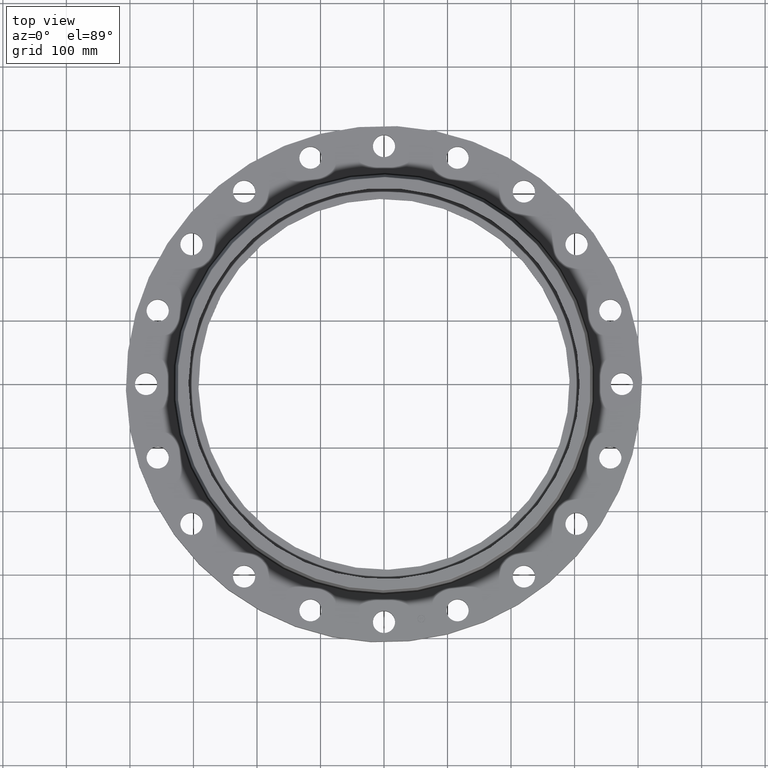
[diagram: clean part render]
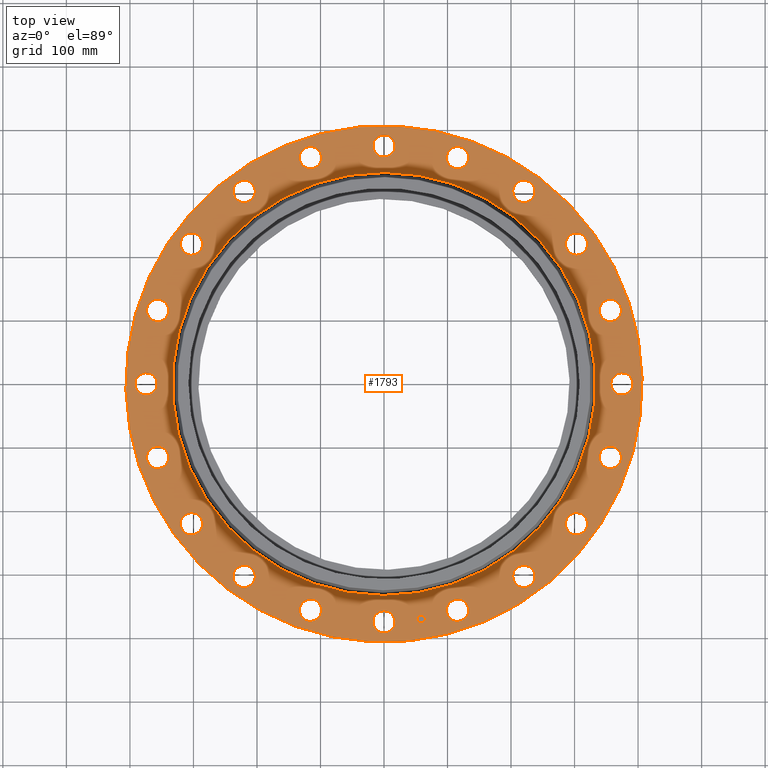
[diagram: same view with one face highlighted and labeled with its STEP entity id]
A machine part, top view. The second image highlights one B-rep face of the part: STEP entity #1793.
In plain terms, the highlighted planar face has unit normal (0, 0, -1).
Its self-contained STEP definition (entity closure, byte-faithful):
#593=AXIS2_PLACEMENT_3D('Circle Axis2P3D',#591,#592,$) ;
#612=AXIS2_PLACEMENT_3D('Circle Axis2P3D',#610,#611,$) ;
#629=AXIS2_PLACEMENT_3D('Circle Axis2P3D',#627,#628,$) ;
#664=AXIS2_PLACEMENT_3D('Circle Axis2P3D',#662,#663,$) ;
#814=AXIS2_PLACEMENT_3D('Circle Axis2P3D',#812,#813,$) ;
#826=AXIS2_PLACEMENT_3D('Circle Axis2P3D',#824,#825,$) ;
#857=AXIS2_PLACEMENT_3D('Circle Axis2P3D',#855,#856,$) ;
#869=AXIS2_PLACEMENT_3D('Circle Axis2P3D',#867,#868,$) ;
#900=AXIS2_PLACEMENT_3D('Circle Axis2P3D',#898,#899,$) ;
#912=AXIS2_PLACEMENT_3D('Circle Axis2P3D',#910,#911,$) ;
#943=AXIS2_PLACEMENT_3D('Circle Axis2P3D',#941,#942,$) ;
#955=AXIS2_PLACEMENT_3D('Circle Axis2P3D',#953,#954,$) ;
#986=AXIS2_PLACEMENT_3D('Circle Axis2P3D',#984,#985,$) ;
#998=AXIS2_PLACEMENT_3D('Circle Axis2P3D',#996,#997,$) ;
#1029=AXIS2_PLACEMENT_3D('Circle Axis2P3D',#1027,#1028,$) ;
#1041=AXIS2_PLACEMENT_3D('Circle Axis2P3D',#1039,#1040,$) ;
#1072=AXIS2_PLACEMENT_3D('Circle Axis2P3D',#1070,#1071,$) ;
#1084=AXIS2_PLACEMENT_3D('Circle Axis2P3D',#1082,#1083,$) ;
#1115=AXIS2_PLACEMENT_3D('Circle Axis2P3D',#1113,#1114,$) ;
#1127=AXIS2_PLACEMENT_3D('Circle Axis2P3D',#1125,#1126,$) ;
#1158=AXIS2_PLACEMENT_3D('Circle Axis2P3D',#1156,#1157,$) ;
#1170=AXIS2_PLACEMENT_3D('Circle Axis2P3D',#1168,#1169,$) ;
#1201=AXIS2_PLACEMENT_3D('Circle Axis2P3D',#1199,#1200,$) ;
#1213=AXIS2_PLACEMENT_3D('Circle Axis2P3D',#1211,#1212,$) ;
#1244=AXIS2_PLACEMENT_3D('Circle Axis2P3D',#1242,#1243,$) ;
#1256=AXIS2_PLACEMENT_3D('Circle Axis2P3D',#1254,#1255,$) ;
#1287=AXIS2_PLACEMENT_3D('Circle Axis2P3D',#1285,#1286,$) ;
#1299=AXIS2_PLACEMENT_3D('Circle Axis2P3D',#1297,#1298,$) ;
#1330=AXIS2_PLACEMENT_3D('Circle Axis2P3D',#1328,#1329,$) ;
#1342=AXIS2_PLACEMENT_3D('Circle Axis2P3D',#1340,#1341,$) ;
#1373=AXIS2_PLACEMENT_3D('Circle Axis2P3D',#1371,#1372,$) ;
#1385=AXIS2_PLACEMENT_3D('Circle Axis2P3D',#1383,#1384,$) ;
#1416=AXIS2_PLACEMENT_3D('Circle Axis2P3D',#1414,#1415,$) ;
#1428=AXIS2_PLACEMENT_3D('Circle Axis2P3D',#1426,#1427,$) ;
#1459=AXIS2_PLACEMENT_3D('Circle Axis2P3D',#1457,#1458,$) ;
#1471=AXIS2_PLACEMENT_3D('Circle Axis2P3D',#1469,#1470,$) ;
#1502=AXIS2_PLACEMENT_3D('Circle Axis2P3D',#1500,#1501,$) ;
#1514=AXIS2_PLACEMENT_3D('Circle Axis2P3D',#1512,#1513,$) ;
#1545=AXIS2_PLACEMENT_3D('Circle Axis2P3D',#1543,#1544,$) ;
#1557=AXIS2_PLACEMENT_3D('Circle Axis2P3D',#1555,#1556,$) ;
#1588=AXIS2_PLACEMENT_3D('Circle Axis2P3D',#1586,#1587,$) ;
#1600=AXIS2_PLACEMENT_3D('Circle Axis2P3D',#1598,#1599,$) ;
#1631=AXIS2_PLACEMENT_3D('Circle Axis2P3D',#1629,#1630,$) ;
#1643=AXIS2_PLACEMENT_3D('Circle Axis2P3D',#1641,#1642,$) ;
#1685=AXIS2_PLACEMENT_3D('Plane Axis2P3D',#1682,#1683,#1684) ;
#1777=AXIS2_PLACEMENT_3D('Circle Axis2P3D',#1775,#1776,$) ;
#1786=AXIS2_PLACEMENT_3D('Circle Axis2P3D',#1784,#1785,$) ;
#588=CARTESIAN_POINT('Vertex',(-7.6708086177,-14.0413209903,1.81000000001)) ;
#591=CARTESIAN_POINT('Axis2P3D Location',(0.,0.,1.81000000001)) ;
#595=CARTESIAN_POINT('Vertex',(7.6708086177,14.0413209903,1.81000000001)) ;
#610=CARTESIAN_POINT('Axis2P3D Location',(0.,0.,1.81000000001)) ;
#627=CARTESIAN_POINT('Axis2P3D Location',(0.,0.,1.81000000001)) ;
#631=CARTESIAN_POINT('Vertex',(6.28543468175,11.5054110106,1.81000000001)) ;
#633=CARTESIAN_POINT('Vertex',(-6.28543468175,-11.5054110106,1.81000000001)) ;
#662=CARTESIAN_POINT('Axis2P3D Location',(0.,0.,1.81000000001)) ;
#802=CARTESIAN_POINT('Vertex',(14.70620268,4.43050739573,1.81000000001)) ;
#809=CARTESIAN_POINT('Vertex',(13.3499645508,4.68549393836,1.81000000001)) ;
#812=CARTESIAN_POINT('Axis2P3D Location',(14.0280836154,4.55800066705,1.81000000001)) ;
#824=CARTESIAN_POINT('Axis2P3D Location',(14.0280836154,4.55800066705,1.81000000001)) ;
#845=CARTESIAN_POINT('Vertex',(12.6173278098,8.75812948005,1.81000000001)) ;
#852=CARTESIAN_POINT('Vertex',(11.2486735244,8.58153546265,1.81000000001)) ;
#855=CARTESIAN_POINT('Axis2P3D Location',(11.9330006671,8.66983247135,1.81000000001)) ;
#867=CARTESIAN_POINT('Axis2P3D Location',(11.9330006671,8.66983247135,1.81000000001)) ;
#888=CARTESIAN_POINT('Vertex',(9.29338098346,12.2284448294,1.81000000001)) ;
#895=CARTESIAN_POINT('Vertex',(8.04628395923,11.6375565048,1.81000000001)) ;
#898=CARTESIAN_POINT('Axis2P3D Location',(8.66983247135,11.9330006671,1.81000000001)) ;
#910=CARTESIAN_POINT('Axis2P3D Location',(8.66983247135,11.9330006671,1.81000000001)) ;
#931=CARTESIAN_POINT('Vertex',(5.05973327568,14.5017547982,1.81000000001)) ;
#938=CARTESIAN_POINT('Vertex',(4.05626805842,13.5544124326,1.81000000001)) ;
#941=CARTESIAN_POINT('Axis2P3D Location',(4.55800066705,14.0280836154,1.81000000001)) ;
#953=CARTESIAN_POINT('Axis2P3D Location',(4.55800066705,14.0280836154,1.81000000001)) ;
#974=CARTESIAN_POINT('Vertex',(0.330803621638,15.3555319678,1.81000000001)) ;
#981=CARTESIAN_POINT('Vertex',(-0.330803621638,14.1444680324,1.81000000001)) ;
#984=CARTESIAN_POINT('Axis2P3D Location',(-1.58101627338E-014,14.7500000001,1.81000000001)) ;
#996=CARTESIAN_POINT('Axis2P3D Location',(-1.58101627338E-014,14.7500000001,1.81000000001)) ;
#1017=CARTESIAN_POINT('Vertex',(-4.43050739573,14.70620268,1.81000000001)) ;
#1024=CARTESIAN_POINT('Vertex',(-4.68549393836,13.3499645508,1.81000000001)) ;
#1027=CARTESIAN_POINT('Axis2P3D Location',(-4.55800066705,14.0280836154,1.81000000001)) ;
#1039=CARTESIAN_POINT('Axis2P3D Location',(-4.55800066705,14.0280836154,1.81000000001)) ;
#1060=CARTESIAN_POINT('Vertex',(-8.75812948005,12.6173278098,1.81000000001)) ;
#1067=CARTESIAN_POINT('Vertex',(-8.58153546265,11.2486735244,1.81000000001)) ;
#1070=CARTESIAN_POINT('Axis2P3D Location',(-8.66983247135,11.9330006671,1.81000000001)) ;
#1082=CARTESIAN_POINT('Axis2P3D Location',(-8.66983247135,11.9330006671,1.81000000001)) ;
#1103=CARTESIAN_POINT('Vertex',(-12.2284448294,9.29338098346,1.81000000001)) ;
#1110=CARTESIAN_POINT('Vertex',(-11.6375565048,8.04628395923,1.81000000001)) ;
#1113=CARTESIAN_POINT('Axis2P3D Location',(-11.9330006671,8.66983247135,1.81000000001)) ;
#1125=CARTESIAN_POINT('Axis2P3D Location',(-11.9330006671,8.66983247135,1.81000000001)) ;
#1146=CARTESIAN_POINT('Vertex',(-14.5017547982,5.05973327568,1.81000000001)) ;
#1153=CARTESIAN_POINT('Vertex',(-13.5544124326,4.05626805842,1.81000000001)) ;
#1156=CARTESIAN_POINT('Axis2P3D Location',(-14.0280836154,4.55800066705,1.81000000001)) ;
#1168=CARTESIAN_POINT('Axis2P3D Location',(-14.0280836154,4.55800066705,1.81000000001)) ;
#1189=CARTESIAN_POINT('Vertex',(-15.3555319678,0.330803621638,1.81000000001)) ;
#1196=CARTESIAN_POINT('Vertex',(-14.1444680324,-0.330803621638,1.81000000001)) ;
#1199=CARTESIAN_POINT('Axis2P3D Location',(-14.7500000001,-8.35666987406E-015,1.81000000001)) ;
#1211=CARTESIAN_POINT('Axis2P3D Location',(-14.7500000001,-8.35666987406E-015,1.81000000001)) ;
#1232=CARTESIAN_POINT('Vertex',(-14.70620268,-4.43050739573,1.81000000001)) ;
#1239=CARTESIAN_POINT('Vertex',(-13.3499645508,-4.68549393836,1.81000000001)) ;
#1242=CARTESIAN_POINT('Axis2P3D Location',(-14.0280836154,-4.55800066705,1.81000000001)) ;
#1254=CARTESIAN_POINT('Axis2P3D Location',(-14.0280836154,-4.55800066705,1.81000000001)) ;
#1275=CARTESIAN_POINT('Vertex',(-12.6173278098,-8.75812948005,1.81000000001)) ;
#1282=CARTESIAN_POINT('Vertex',(-11.2486735244,-8.58153546265,1.81000000001)) ;
#1285=CARTESIAN_POINT('Axis2P3D Location',(-11.9330006671,-8.66983247135,1.81000000001)) ;
#1297=CARTESIAN_POINT('Axis2P3D Location',(-11.9330006671,-8.66983247135,1.81000000001)) ;
#1318=CARTESIAN_POINT('Vertex',(-9.29338098346,-12.2284448294,1.81000000001)) ;
#1325=CARTESIAN_POINT('Vertex',(-8.04628395923,-11.6375565048,1.81000000001)) ;
#1328=CARTESIAN_POINT('Axis2P3D Location',(-8.66983247135,-11.9330006671,1.81000000001)) ;
#1340=CARTESIAN_POINT('Axis2P3D Location',(-8.66983247135,-11.9330006671,1.81000000001)) ;
#1361=CARTESIAN_POINT('Vertex',(-5.05973327568,-14.5017547982,1.81000000001)) ;
#1368=CARTESIAN_POINT('Vertex',(-4.05626805842,-13.5544124326,1.81000000001)) ;
#1371=CARTESIAN_POINT('Axis2P3D Location',(-4.55800066705,-14.0280836154,1.81000000001)) ;
#1383=CARTESIAN_POINT('Axis2P3D Location',(-4.55800066705,-14.0280836154,1.81000000001)) ;
#1404=CARTESIAN_POINT('Vertex',(-0.330803621638,-15.3555319678,1.81000000001)) ;
#1411=CARTESIAN_POINT('Vertex',(0.330803621638,-14.1444680324,1.81000000001)) ;
#1414=CARTESIAN_POINT('Axis2P3D Location',(4.17833493703E-015,-14.7500000001,1.81000000001)) ;
#1426=CARTESIAN_POINT('Axis2P3D Location',(4.17833493703E-015,-14.7500000001,1.81000000001)) ;
#1447=CARTESIAN_POINT('Vertex',(4.43050739573,-14.70620268,1.81000000001)) ;
#1454=CARTESIAN_POINT('Vertex',(4.68549393836,-13.3499645508,1.81000000001)) ;
#1457=CARTESIAN_POINT('Axis2P3D Location',(4.55800066705,-14.0280836154,1.81000000001)) ;
#1469=CARTESIAN_POINT('Axis2P3D Location',(4.55800066705,-14.0280836154,1.81000000001)) ;
#1490=CARTESIAN_POINT('Vertex',(8.75812948005,-12.6173278098,1.81000000001)) ;
#1497=CARTESIAN_POINT('Vertex',(8.58153546265,-11.2486735244,1.81000000001)) ;
#1500=CARTESIAN_POINT('Axis2P3D Location',(8.66983247135,-11.9330006671,1.81000000001)) ;
#1512=CARTESIAN_POINT('Axis2P3D Location',(8.66983247135,-11.9330006671,1.81000000001)) ;
#1533=CARTESIAN_POINT('Vertex',(12.2284448294,-9.29338098346,1.81000000001)) ;
#1540=CARTESIAN_POINT('Vertex',(11.6375565048,-8.04628395923,1.81000000001)) ;
#1543=CARTESIAN_POINT('Axis2P3D Location',(11.9330006671,-8.66983247135,1.81000000001)) ;
#1555=CARTESIAN_POINT('Axis2P3D Location',(11.9330006671,-8.66983247135,1.81000000001)) ;
#1576=CARTESIAN_POINT('Vertex',(14.5017547982,-5.05973327568,1.81000000001)) ;
#1583=CARTESIAN_POINT('Vertex',(13.5544124326,-4.05626805842,1.81000000001)) ;
#1586=CARTESIAN_POINT('Axis2P3D Location',(14.0280836154,-4.55800066705,1.81000000001)) ;
#1598=CARTESIAN_POINT('Axis2P3D Location',(14.0280836154,-4.55800066705,1.81000000001)) ;
#1619=CARTESIAN_POINT('Vertex',(14.1444680324,0.330803621638,1.81000000001)) ;
#1626=CARTESIAN_POINT('Vertex',(15.3555319678,-0.330803621638,1.81000000001)) ;
#1629=CARTESIAN_POINT('Axis2P3D Location',(14.7500000001,0.,1.81000000001)) ;
#1641=CARTESIAN_POINT('Axis2P3D Location',(14.7500000001,0.,1.81000000001)) ;
#1682=CARTESIAN_POINT('Axis2P3D Location',(0.,16.0000000001,1.81000000001)) ;
#1775=CARTESIAN_POINT('Axis2P3D Location',(2.30740835935,-14.5684030238,1.81000000001)) ;
#1779=CARTESIAN_POINT('Vertex',(2.55186122365,-14.5296854937,1.81000000001)) ;
#1781=CARTESIAN_POINT('Vertex',(2.06295549505,-14.6071205539,1.81000000001)) ;
#1784=CARTESIAN_POINT('Axis2P3D Location',(2.30740835935,-14.5684030238,1.81000000001)) ;
#592=DIRECTION('Axis2P3D Direction',(0.,0.,-0.0393700787402)) ;
#611=DIRECTION('Axis2P3D Direction',(0.,0.,-0.0393700787402)) ;
#628=DIRECTION('Axis2P3D Direction',(0.,0.,-0.0393700787402)) ;
#663=DIRECTION('Axis2P3D Direction',(0.,0.,-0.0393700787402)) ;
#813=DIRECTION('Axis2P3D Direction',(0.,0.,-0.0393700787402)) ;
#825=DIRECTION('Axis2P3D Direction',(0.,0.,-0.0393700787402)) ;
#856=DIRECTION('Axis2P3D Direction',(0.,0.,-0.0393700787402)) ;
#868=DIRECTION('Axis2P3D Direction',(0.,0.,-0.0393700787402)) ;
#899=DIRECTION('Axis2P3D Direction',(0.,0.,-0.0393700787402)) ;
#911=DIRECTION('Axis2P3D Direction',(0.,0.,-0.0393700787402)) ;
#942=DIRECTION('Axis2P3D Direction',(0.,0.,-0.0393700787402)) ;
#954=DIRECTION('Axis2P3D Direction',(0.,0.,-0.0393700787402)) ;
#985=DIRECTION('Axis2P3D Direction',(0.,0.,-0.0393700787402)) ;
#997=DIRECTION('Axis2P3D Direction',(0.,0.,-0.0393700787402)) ;
#1028=DIRECTION('Axis2P3D Direction',(0.,0.,-0.0393700787402)) ;
#1040=DIRECTION('Axis2P3D Direction',(0.,0.,-0.0393700787402)) ;
#1071=DIRECTION('Axis2P3D Direction',(0.,0.,-0.0393700787402)) ;
#1083=DIRECTION('Axis2P3D Direction',(0.,0.,-0.0393700787402)) ;
#1114=DIRECTION('Axis2P3D Direction',(0.,0.,-0.0393700787402)) ;
#1126=DIRECTION('Axis2P3D Direction',(0.,0.,-0.0393700787402)) ;
#1157=DIRECTION('Axis2P3D Direction',(0.,0.,-0.0393700787402)) ;
#1169=DIRECTION('Axis2P3D Direction',(0.,0.,-0.0393700787402)) ;
#1200=DIRECTION('Axis2P3D Direction',(-0.,0.,-0.0393700787402)) ;
#1212=DIRECTION('Axis2P3D Direction',(-0.,0.,-0.0393700787402)) ;
#1243=DIRECTION('Axis2P3D Direction',(-0.,0.,-0.0393700787402)) ;
#1255=DIRECTION('Axis2P3D Direction',(-0.,0.,-0.0393700787402)) ;
#1286=DIRECTION('Axis2P3D Direction',(-0.,0.,-0.0393700787402)) ;
#1298=DIRECTION('Axis2P3D Direction',(-0.,0.,-0.0393700787402)) ;
#1329=DIRECTION('Axis2P3D Direction',(-0.,0.,-0.0393700787402)) ;
#1341=DIRECTION('Axis2P3D Direction',(-0.,0.,-0.0393700787402)) ;
#1372=DIRECTION('Axis2P3D Direction',(-0.,0.,-0.0393700787402)) ;
#1384=DIRECTION('Axis2P3D Direction',(-0.,0.,-0.0393700787402)) ;
#1415=DIRECTION('Axis2P3D Direction',(0.,-0.,-0.0393700787402)) ;
#1427=DIRECTION('Axis2P3D Direction',(0.,-0.,-0.0393700787402)) ;
#1458=DIRECTION('Axis2P3D Direction',(0.,-0.,-0.0393700787402)) ;
#1470=DIRECTION('Axis2P3D Direction',(0.,-0.,-0.0393700787402)) ;
#1501=DIRECTION('Axis2P3D Direction',(0.,-0.,-0.0393700787402)) ;
#1513=DIRECTION('Axis2P3D Direction',(0.,-0.,-0.0393700787402)) ;
#1544=DIRECTION('Axis2P3D Direction',(0.,-0.,-0.0393700787402)) ;
#1556=DIRECTION('Axis2P3D Direction',(0.,-0.,-0.0393700787402)) ;
#1587=DIRECTION('Axis2P3D Direction',(0.,-0.,-0.0393700787402)) ;
#1599=DIRECTION('Axis2P3D Direction',(0.,-0.,-0.0393700787402)) ;
#1630=DIRECTION('Axis2P3D Direction',(0.,-0.,-0.0393700787402)) ;
#1642=DIRECTION('Axis2P3D Direction',(0.,-0.,-0.0393700787402)) ;
#1683=DIRECTION('Axis2P3D Direction',(0.,0.,-0.0393700787402)) ;
#1684=DIRECTION('Axis2P3D XDirection',(0.0393700787402,0.,0.)) ;
#1776=DIRECTION('Axis2P3D Direction',(0.,0.,-0.0393700787402)) ;
#1785=DIRECTION('Axis2P3D Direction',(0.,0.,-0.0393700787402)) ;
#1688=ORIENTED_EDGE('',*,*,#614,.F.) ;
#1689=ORIENTED_EDGE('',*,*,#597,.F.) ;
#1692=ORIENTED_EDGE('',*,*,#1633,.T.) ;
#1693=ORIENTED_EDGE('',*,*,#1645,.T.) ;
#1696=ORIENTED_EDGE('',*,*,#666,.T.) ;
#1697=ORIENTED_EDGE('',*,*,#635,.T.) ;
#1700=ORIENTED_EDGE('',*,*,#1590,.T.) ;
#1701=ORIENTED_EDGE('',*,*,#1602,.T.) ;
#1704=ORIENTED_EDGE('',*,*,#1547,.T.) ;
#1705=ORIENTED_EDGE('',*,*,#1559,.T.) ;
#1708=ORIENTED_EDGE('',*,*,#1504,.T.) ;
#1709=ORIENTED_EDGE('',*,*,#1516,.T.) ;
#1712=ORIENTED_EDGE('',*,*,#1461,.T.) ;
#1713=ORIENTED_EDGE('',*,*,#1473,.T.) ;
#1716=ORIENTED_EDGE('',*,*,#1418,.T.) ;
#1717=ORIENTED_EDGE('',*,*,#1430,.T.) ;
#1720=ORIENTED_EDGE('',*,*,#1375,.T.) ;
#1721=ORIENTED_EDGE('',*,*,#1387,.T.) ;
#1724=ORIENTED_EDGE('',*,*,#1332,.T.) ;
#1725=ORIENTED_EDGE('',*,*,#1344,.T.) ;
#1728=ORIENTED_EDGE('',*,*,#1289,.T.) ;
#1729=ORIENTED_EDGE('',*,*,#1301,.T.) ;
#1732=ORIENTED_EDGE('',*,*,#1246,.T.) ;
#1733=ORIENTED_EDGE('',*,*,#1258,.T.) ;
#1736=ORIENTED_EDGE('',*,*,#1203,.T.) ;
#1737=ORIENTED_EDGE('',*,*,#1215,.T.) ;
#1740=ORIENTED_EDGE('',*,*,#1160,.T.) ;
#1741=ORIENTED_EDGE('',*,*,#1172,.T.) ;
#1744=ORIENTED_EDGE('',*,*,#1117,.T.) ;
#1745=ORIENTED_EDGE('',*,*,#1129,.T.) ;
#1748=ORIENTED_EDGE('',*,*,#1074,.T.) ;
#1749=ORIENTED_EDGE('',*,*,#1086,.T.) ;
#1752=ORIENTED_EDGE('',*,*,#1031,.T.) ;
#1753=ORIENTED_EDGE('',*,*,#1043,.T.) ;
#1756=ORIENTED_EDGE('',*,*,#988,.T.) ;
#1757=ORIENTED_EDGE('',*,*,#1000,.T.) ;
#1760=ORIENTED_EDGE('',*,*,#945,.T.) ;
#1761=ORIENTED_EDGE('',*,*,#957,.T.) ;
#1764=ORIENTED_EDGE('',*,*,#902,.T.) ;
#1765=ORIENTED_EDGE('',*,*,#914,.T.) ;
#1768=ORIENTED_EDGE('',*,*,#859,.T.) ;
#1769=ORIENTED_EDGE('',*,*,#871,.T.) ;
#1772=ORIENTED_EDGE('',*,*,#816,.T.) ;
#1773=ORIENTED_EDGE('',*,*,#828,.T.) ;
#1790=ORIENTED_EDGE('',*,*,#1783,.T.) ;
#1791=ORIENTED_EDGE('',*,*,#1788,.T.) ;
#1694=FACE_BOUND('',#1691,.T.) ;
#1698=FACE_BOUND('',#1695,.T.) ;
#1702=FACE_BOUND('',#1699,.T.) ;
#1706=FACE_BOUND('',#1703,.T.) ;
#1710=FACE_BOUND('',#1707,.T.) ;
#1714=FACE_BOUND('',#1711,.T.) ;
#1718=FACE_BOUND('',#1715,.T.) ;
#1722=FACE_BOUND('',#1719,.T.) ;
#1726=FACE_BOUND('',#1723,.T.) ;
#1730=FACE_BOUND('',#1727,.T.) ;
#1734=FACE_BOUND('',#1731,.T.) ;
#1738=FACE_BOUND('',#1735,.T.) ;
#1742=FACE_BOUND('',#1739,.T.) ;
#1746=FACE_BOUND('',#1743,.T.) ;
#1750=FACE_BOUND('',#1747,.T.) ;
#1754=FACE_BOUND('',#1751,.T.) ;
#1758=FACE_BOUND('',#1755,.T.) ;
#1762=FACE_BOUND('',#1759,.T.) ;
#1766=FACE_BOUND('',#1763,.T.) ;
#1770=FACE_BOUND('',#1767,.T.) ;
#1774=FACE_BOUND('',#1771,.T.) ;
#1792=FACE_BOUND('',#1789,.T.) ;
#1793=ADVANCED_FACE('PartBody',(#1690,#1694,#1698,#1702,#1706,#1710,#1714,#1718,#1722,#1726,#1730,#1734,#1738,#1742,#1746,#1750,#1754,#1758,#1762,#1766,#1770,#1774,#1792),#1686,.F.) ;
#594=CIRCLE('generated circle',#593,16.0000000001) ;
#613=CIRCLE('generated circle',#612,16.0000000001) ;
#630=CIRCLE('generated circle',#629,13.1103459779) ;
#665=CIRCLE('generated circle',#664,13.1103459779) ;
#815=CIRCLE('generated circle',#814,0.690000000003) ;
#827=CIRCLE('generated circle',#826,0.690000000003) ;
#858=CIRCLE('generated circle',#857,0.690000000003) ;
#870=CIRCLE('generated circle',#869,0.690000000003) ;
#901=CIRCLE('generated circle',#900,0.690000000003) ;
#913=CIRCLE('generated circle',#912,0.690000000003) ;
#944=CIRCLE('generated circle',#943,0.690000000003) ;
#956=CIRCLE('generated circle',#955,0.690000000003) ;
#987=CIRCLE('generated circle',#986,0.690000000003) ;
#999=CIRCLE('generated circle',#998,0.690000000003) ;
#1030=CIRCLE('generated circle',#1029,0.690000000003) ;
#1042=CIRCLE('generated circle',#1041,0.690000000003) ;
#1073=CIRCLE('generated circle',#1072,0.690000000003) ;
#1085=CIRCLE('generated circle',#1084,0.690000000003) ;
#1116=CIRCLE('generated circle',#1115,0.690000000003) ;
#1128=CIRCLE('generated circle',#1127,0.690000000003) ;
#1159=CIRCLE('generated circle',#1158,0.690000000003) ;
#1171=CIRCLE('generated circle',#1170,0.690000000003) ;
#1202=CIRCLE('generated circle',#1201,0.690000000003) ;
#1214=CIRCLE('generated circle',#1213,0.690000000003) ;
#1245=CIRCLE('generated circle',#1244,0.690000000003) ;
#1257=CIRCLE('generated circle',#1256,0.690000000003) ;
#1288=CIRCLE('generated circle',#1287,0.690000000003) ;
#1300=CIRCLE('generated circle',#1299,0.690000000003) ;
#1331=CIRCLE('generated circle',#1330,0.690000000003) ;
#1343=CIRCLE('generated circle',#1342,0.690000000003) ;
#1374=CIRCLE('generated circle',#1373,0.690000000003) ;
#1386=CIRCLE('generated circle',#1385,0.690000000003) ;
#1417=CIRCLE('generated circle',#1416,0.690000000003) ;
#1429=CIRCLE('generated circle',#1428,0.690000000003) ;
#1460=CIRCLE('generated circle',#1459,0.690000000003) ;
#1472=CIRCLE('generated circle',#1471,0.690000000003) ;
#1503=CIRCLE('generated circle',#1502,0.690000000003) ;
#1515=CIRCLE('generated circle',#1514,0.690000000003) ;
#1546=CIRCLE('generated circle',#1545,0.690000000003) ;
#1558=CIRCLE('generated circle',#1557,0.690000000003) ;
#1589=CIRCLE('generated circle',#1588,0.690000000003) ;
#1601=CIRCLE('generated circle',#1600,0.690000000003) ;
#1632=CIRCLE('generated circle',#1631,0.690000000003) ;
#1644=CIRCLE('generated circle',#1643,0.690000000003) ;
#1778=CIRCLE('generated circle',#1777,0.247500000001) ;
#1787=CIRCLE('generated circle',#1786,0.247500000001) ;
#597=EDGE_CURVE('',#589,#596,#594,.T.) ;
#614=EDGE_CURVE('',#596,#589,#613,.T.) ;
#635=EDGE_CURVE('',#632,#634,#630,.T.) ;
#666=EDGE_CURVE('',#634,#632,#665,.T.) ;
#816=EDGE_CURVE('',#803,#810,#815,.T.) ;
#828=EDGE_CURVE('',#810,#803,#827,.T.) ;
#859=EDGE_CURVE('',#846,#853,#858,.T.) ;
#871=EDGE_CURVE('',#853,#846,#870,.T.) ;
#902=EDGE_CURVE('',#889,#896,#901,.T.) ;
#914=EDGE_CURVE('',#896,#889,#913,.T.) ;
#945=EDGE_CURVE('',#932,#939,#944,.T.) ;
#957=EDGE_CURVE('',#939,#932,#956,.T.) ;
#988=EDGE_CURVE('',#975,#982,#987,.T.) ;
#1000=EDGE_CURVE('',#982,#975,#999,.T.) ;
#1031=EDGE_CURVE('',#1018,#1025,#1030,.T.) ;
#1043=EDGE_CURVE('',#1025,#1018,#1042,.T.) ;
#1074=EDGE_CURVE('',#1061,#1068,#1073,.T.) ;
#1086=EDGE_CURVE('',#1068,#1061,#1085,.T.) ;
#1117=EDGE_CURVE('',#1104,#1111,#1116,.T.) ;
#1129=EDGE_CURVE('',#1111,#1104,#1128,.T.) ;
#1160=EDGE_CURVE('',#1147,#1154,#1159,.T.) ;
#1172=EDGE_CURVE('',#1154,#1147,#1171,.T.) ;
#1203=EDGE_CURVE('',#1190,#1197,#1202,.T.) ;
#1215=EDGE_CURVE('',#1197,#1190,#1214,.T.) ;
#1246=EDGE_CURVE('',#1233,#1240,#1245,.T.) ;
#1258=EDGE_CURVE('',#1240,#1233,#1257,.T.) ;
#1289=EDGE_CURVE('',#1276,#1283,#1288,.T.) ;
#1301=EDGE_CURVE('',#1283,#1276,#1300,.T.) ;
#1332=EDGE_CURVE('',#1319,#1326,#1331,.T.) ;
#1344=EDGE_CURVE('',#1326,#1319,#1343,.T.) ;
#1375=EDGE_CURVE('',#1362,#1369,#1374,.T.) ;
#1387=EDGE_CURVE('',#1369,#1362,#1386,.T.) ;
#1418=EDGE_CURVE('',#1405,#1412,#1417,.T.) ;
#1430=EDGE_CURVE('',#1412,#1405,#1429,.T.) ;
#1461=EDGE_CURVE('',#1448,#1455,#1460,.T.) ;
#1473=EDGE_CURVE('',#1455,#1448,#1472,.T.) ;
#1504=EDGE_CURVE('',#1491,#1498,#1503,.T.) ;
#1516=EDGE_CURVE('',#1498,#1491,#1515,.T.) ;
#1547=EDGE_CURVE('',#1534,#1541,#1546,.T.) ;
#1559=EDGE_CURVE('',#1541,#1534,#1558,.T.) ;
#1590=EDGE_CURVE('',#1577,#1584,#1589,.T.) ;
#1602=EDGE_CURVE('',#1584,#1577,#1601,.T.) ;
#1633=EDGE_CURVE('',#1620,#1627,#1632,.T.) ;
#1645=EDGE_CURVE('',#1627,#1620,#1644,.T.) ;
#1783=EDGE_CURVE('',#1780,#1782,#1778,.T.) ;
#1788=EDGE_CURVE('',#1782,#1780,#1787,.T.) ;
#1687=EDGE_LOOP('',(#1688,#1689)) ;
#1691=EDGE_LOOP('',(#1692,#1693)) ;
#1695=EDGE_LOOP('',(#1696,#1697)) ;
#1699=EDGE_LOOP('',(#1700,#1701)) ;
#1703=EDGE_LOOP('',(#1704,#1705)) ;
#1707=EDGE_LOOP('',(#1708,#1709)) ;
#1711=EDGE_LOOP('',(#1712,#1713)) ;
#1715=EDGE_LOOP('',(#1716,#1717)) ;
#1719=EDGE_LOOP('',(#1720,#1721)) ;
#1723=EDGE_LOOP('',(#1724,#1725)) ;
#1727=EDGE_LOOP('',(#1728,#1729)) ;
#1731=EDGE_LOOP('',(#1732,#1733)) ;
#1735=EDGE_LOOP('',(#1736,#1737)) ;
#1739=EDGE_LOOP('',(#1740,#1741)) ;
#1743=EDGE_LOOP('',(#1744,#1745)) ;
#1747=EDGE_LOOP('',(#1748,#1749)) ;
#1751=EDGE_LOOP('',(#1752,#1753)) ;
#1755=EDGE_LOOP('',(#1756,#1757)) ;
#1759=EDGE_LOOP('',(#1760,#1761)) ;
#1763=EDGE_LOOP('',(#1764,#1765)) ;
#1767=EDGE_LOOP('',(#1768,#1769)) ;
#1771=EDGE_LOOP('',(#1772,#1773)) ;
#1789=EDGE_LOOP('',(#1790,#1791)) ;
#1690=FACE_OUTER_BOUND('',#1687,.T.) ;
#1686=PLANE('',#1685) ;
#589=VERTEX_POINT('',#588) ;
#596=VERTEX_POINT('',#595) ;
#632=VERTEX_POINT('',#631) ;
#634=VERTEX_POINT('',#633) ;
#803=VERTEX_POINT('',#802) ;
#810=VERTEX_POINT('',#809) ;
#846=VERTEX_POINT('',#845) ;
#853=VERTEX_POINT('',#852) ;
#889=VERTEX_POINT('',#888) ;
#896=VERTEX_POINT('',#895) ;
#932=VERTEX_POINT('',#931) ;
#939=VERTEX_POINT('',#938) ;
#975=VERTEX_POINT('',#974) ;
#982=VERTEX_POINT('',#981) ;
#1018=VERTEX_POINT('',#1017) ;
#1025=VERTEX_POINT('',#1024) ;
#1061=VERTEX_POINT('',#1060) ;
#1068=VERTEX_POINT('',#1067) ;
#1104=VERTEX_POINT('',#1103) ;
#1111=VERTEX_POINT('',#1110) ;
#1147=VERTEX_POINT('',#1146) ;
#1154=VERTEX_POINT('',#1153) ;
#1190=VERTEX_POINT('',#1189) ;
#1197=VERTEX_POINT('',#1196) ;
#1233=VERTEX_POINT('',#1232) ;
#1240=VERTEX_POINT('',#1239) ;
#1276=VERTEX_POINT('',#1275) ;
#1283=VERTEX_POINT('',#1282) ;
#1319=VERTEX_POINT('',#1318) ;
#1326=VERTEX_POINT('',#1325) ;
#1362=VERTEX_POINT('',#1361) ;
#1369=VERTEX_POINT('',#1368) ;
#1405=VERTEX_POINT('',#1404) ;
#1412=VERTEX_POINT('',#1411) ;
#1448=VERTEX_POINT('',#1447) ;
#1455=VERTEX_POINT('',#1454) ;
#1491=VERTEX_POINT('',#1490) ;
#1498=VERTEX_POINT('',#1497) ;
#1534=VERTEX_POINT('',#1533) ;
#1541=VERTEX_POINT('',#1540) ;
#1577=VERTEX_POINT('',#1576) ;
#1584=VERTEX_POINT('',#1583) ;
#1620=VERTEX_POINT('',#1619) ;
#1627=VERTEX_POINT('',#1626) ;
#1780=VERTEX_POINT('',#1779) ;
#1782=VERTEX_POINT('',#1781) ;